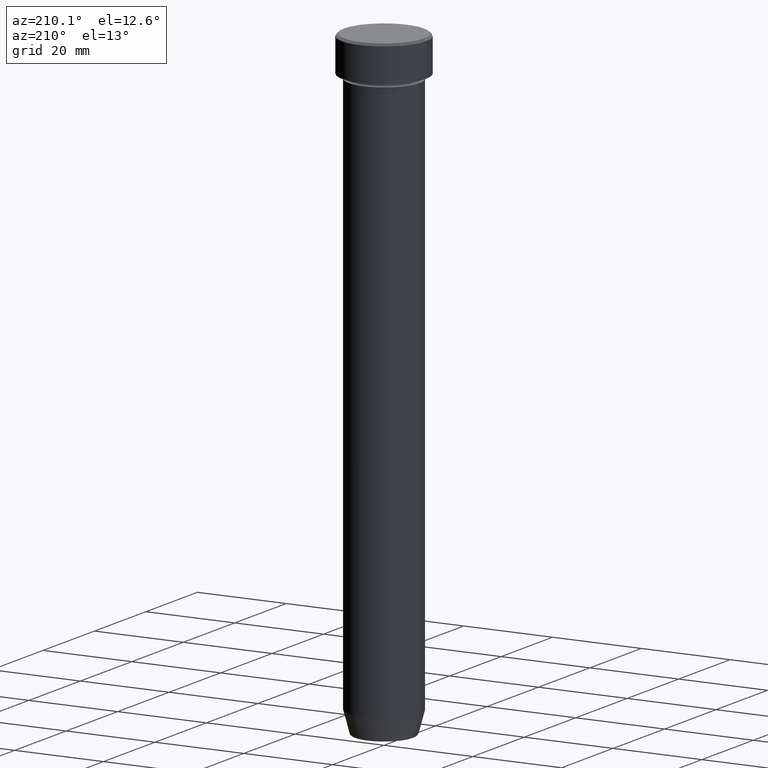
[diagram: clean part render]
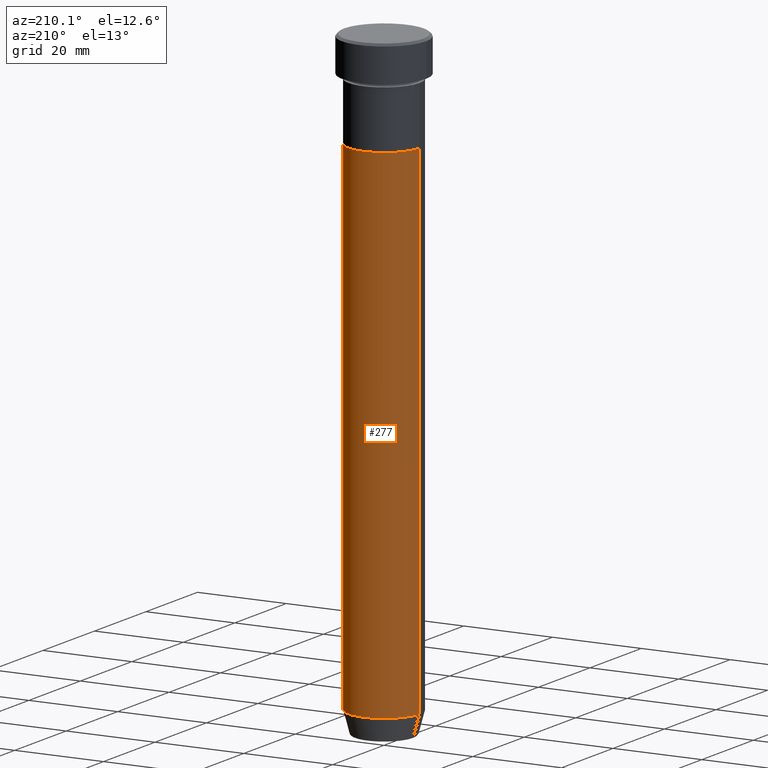
[diagram: same view with one face highlighted and labeled with its STEP entity id]
A machine part, auxiliary view. The second image highlights one B-rep face of the part: STEP entity #277.
In plain terms, the highlighted cylindrical surface (partial cylindrical patch) has radius 8 mm, axis along (-0, -0, 1).
Its self-contained STEP definition (entity closure, byte-faithful):
#16 = VERTEX_POINT ( 'NONE', #391 ) ;
#48 = DIRECTION ( 'NONE',  ( 1.000000000000000000, 0.000000000000000000, 0.000000000000000000 ) ) ;
#60 = AXIS2_PLACEMENT_3D ( 'NONE', #263, #491, #488 ) ;
#74 = FACE_OUTER_BOUND ( 'NONE', #335, .T. ) ;
#99 = EDGE_CURVE ( 'NONE', #558, #112, #411, .T. ) ;
#103 = ORIENTED_EDGE ( 'NONE', *, *, #412, .F. ) ;
#107 = LINE ( 'NONE', #340, #572 ) ;
#112 = VERTEX_POINT ( 'NONE', #407 ) ;
#118 = ORIENTED_EDGE ( 'NONE', *, *, #99, .T. ) ;
#158 = DIRECTION ( 'NONE',  ( -0.000000000000000000, -0.000000000000000000, 1.000000000000000000 ) ) ;
#166 = CIRCLE ( 'NONE', #60, 8.000000000000000000 ) ;
#192 = AXIS2_PLACEMENT_3D ( 'NONE', #580, #435, #469 ) ;
#236 = DIRECTION ( 'NONE',  ( -0.000000000000000000, -0.000000000000000000, 1.000000000000000000 ) ) ;
#263 = CARTESIAN_POINT ( 'NONE',  ( 0.000000000000000000, 0.000000000000000000, -22.00000000000000000 ) ) ;
#277 = ADVANCED_FACE ( 'NONE', ( #74 ), #287, .T. ) ;
#287 = CYLINDRICAL_SURFACE ( 'NONE', #192, 8.000000000000000000 ) ;
#296 = DIRECTION ( 'NONE',  ( -0.000000000000000000, -0.000000000000000000, 1.000000000000000000 ) ) ;
#332 = ORIENTED_EDGE ( 'NONE', *, *, #364, .F. ) ;
#334 = LINE ( 'NONE', #525, #470 ) ;
#335 = EDGE_LOOP ( 'NONE', ( #118, #578, #103, #332 ) ) ;
#340 = CARTESIAN_POINT ( 'NONE',  ( -8.000000000000000000, 9.797174393178825657E-16, 0.000000000000000000 ) ) ;
#343 = VERTEX_POINT ( 'NONE', #349 ) ;
#349 = CARTESIAN_POINT ( 'NONE',  ( 8.000000000000000000, 0.000000000000000000, -22.00000000000000000 ) ) ;
#360 = EDGE_CURVE ( 'NONE', #112, #16, #107, .T. ) ;
#364 = EDGE_CURVE ( 'NONE', #558, #343, #334, .T. ) ;
#391 = CARTESIAN_POINT ( 'NONE',  ( -8.000000000000000000, 9.797174393178825657E-16, -22.00000000000000000 ) ) ;
#407 = CARTESIAN_POINT ( 'NONE',  ( -8.000000000000000000, 9.797174393178825657E-16, -134.9999999999999432 ) ) ;
#411 = CIRCLE ( 'NONE', #597, 8.000000000000000000 ) ;
#412 = EDGE_CURVE ( 'NONE', #343, #16, #166, .T. ) ;
#435 = DIRECTION ( 'NONE',  ( -0.000000000000000000, -0.000000000000000000, 1.000000000000000000 ) ) ;
#466 = CARTESIAN_POINT ( 'NONE',  ( 0.000000000000000000, 0.000000000000000000, -134.9999999999999432 ) ) ;
#469 = DIRECTION ( 'NONE',  ( 1.000000000000000000, 0.000000000000000000, 0.000000000000000000 ) ) ;
#470 = VECTOR ( 'NONE', #296, 1000.000000000000000 ) ;
#488 = DIRECTION ( 'NONE',  ( 1.000000000000000000, 0.000000000000000000, 0.000000000000000000 ) ) ;
#491 = DIRECTION ( 'NONE',  ( -0.000000000000000000, -0.000000000000000000, 1.000000000000000000 ) ) ;
#501 = CARTESIAN_POINT ( 'NONE',  ( 8.000000000000000000, 0.000000000000000000, -134.9999999999999432 ) ) ;
#525 = CARTESIAN_POINT ( 'NONE',  ( 8.000000000000000000, 0.000000000000000000, 0.000000000000000000 ) ) ;
#558 = VERTEX_POINT ( 'NONE', #501 ) ;
#572 = VECTOR ( 'NONE', #158, 1000.000000000000000 ) ;
#578 = ORIENTED_EDGE ( 'NONE', *, *, #360, .T. ) ;
#580 = CARTESIAN_POINT ( 'NONE',  ( 0.000000000000000000, 0.000000000000000000, 0.000000000000000000 ) ) ;
#597 = AXIS2_PLACEMENT_3D ( 'NONE', #466, #236, #48 ) ;